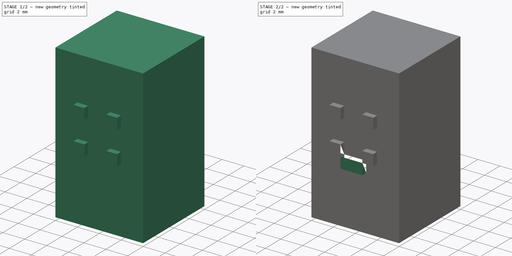
[diagram: build sequence overview — one tinted view per stage of 2, left to right]
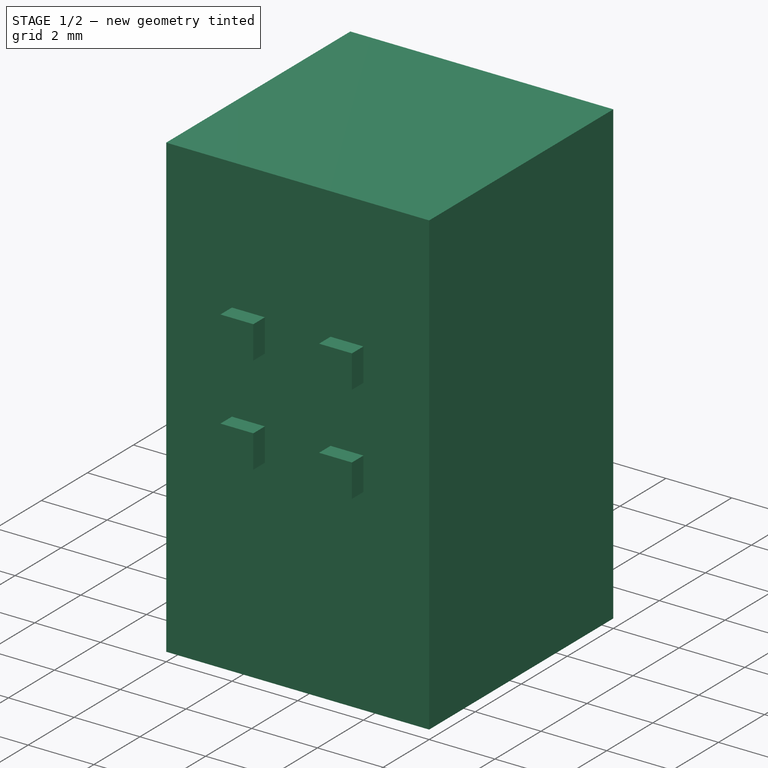
[diagram: stage 1 of 2 — iso view after this stage's code; geometry added in this stage tinted green]
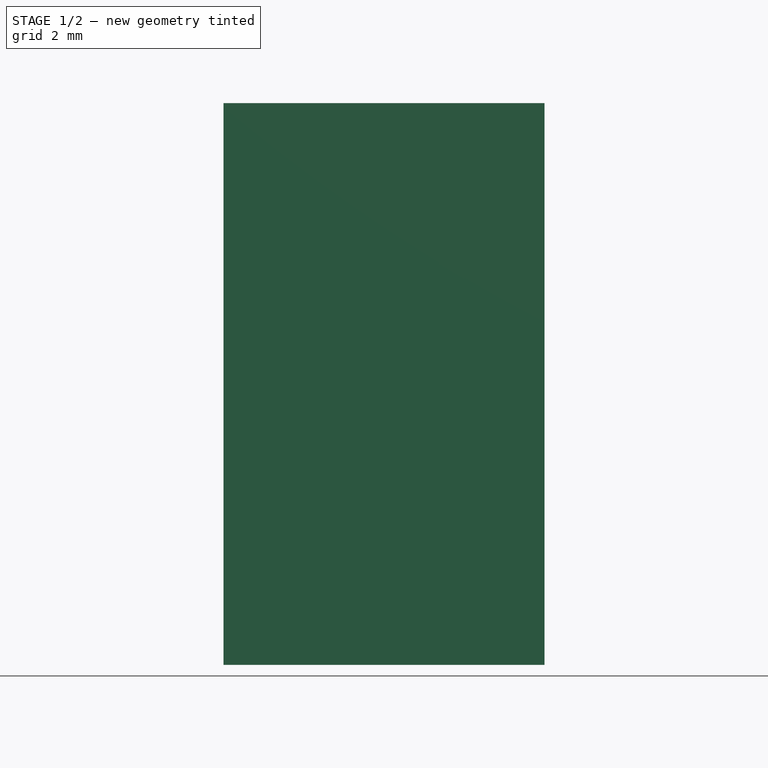
[diagram: stage 1 of 2 — front view after this stage's code; geometry added in this stage tinted green]
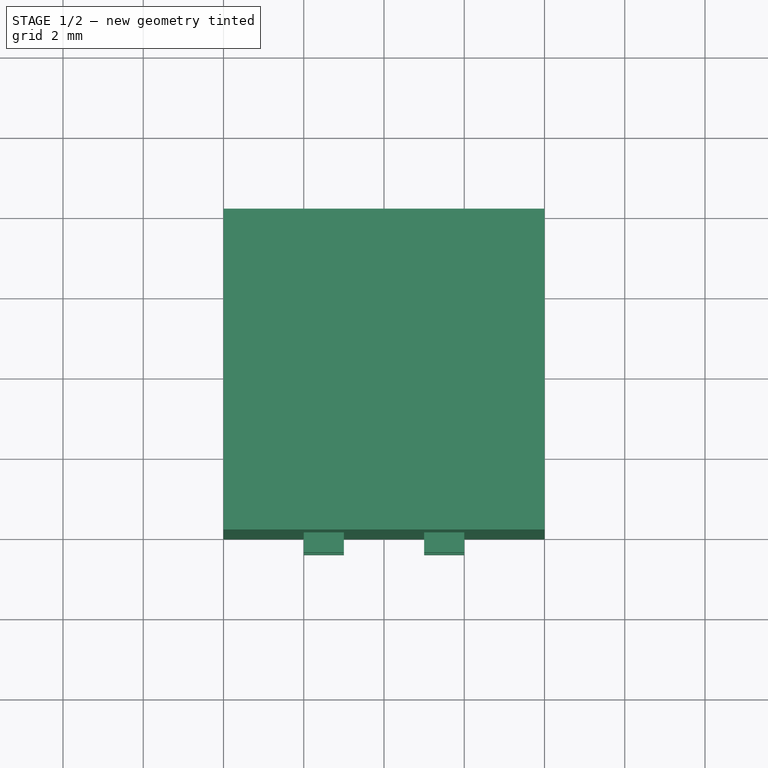
[diagram: stage 1 of 2 — top view after this stage's code; geometry added in this stage tinted green]
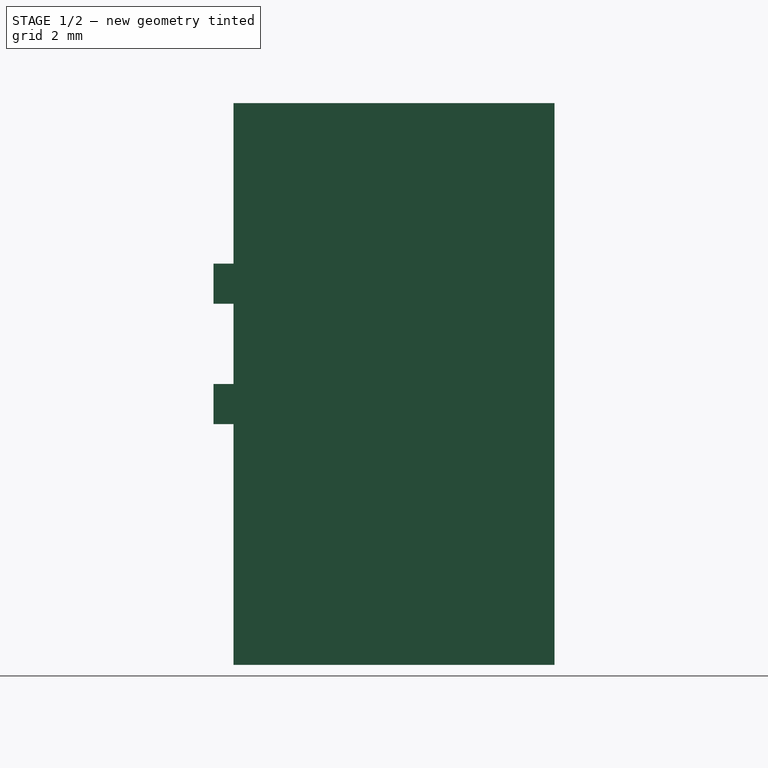
[diagram: stage 1 of 2 — right view after this stage's code; geometry added in this stage tinted green]
FCSTD DOCUMENT  (FreeCAD 0.18R16155 (Git))
Label: liltater
License: All rights reserved
LicenseURL: http://en.wikipedia.org/wiki/All_rights_reserved
objects: Sketcher::SketchObject×3, PartDesign::Pad×3, PartDesign::Body×1, App::Part×1
note: 10 computed .brp shape members not serialized (recipe doc carries the construction recipe); baked Part::Feature solids carry a one-line shape summary decoded from their .brp

FEATURE [Sketcher::SketchObject] Sketch
  MapMode = 5
  Support = -> [XY_Plane001]
  sketch-geometry (4):
    g0: LineSegment StartX=0 StartY=0 StartZ=0 EndX=8 EndY=0 EndZ=0
    g1: LineSegment StartX=8 StartY=0 StartZ=0 EndX=8 EndY=8 EndZ=0
    g2: LineSegment StartX=8 StartY=8 StartZ=0 EndX=0 EndY=8 EndZ=0
    g3: LineSegment StartX=0 StartY=8 StartZ=0 EndX=0 EndY=0 EndZ=0
  constraints (11):
    c: Coincident(g0,g1)
    c: Coincident(g1,g2)
    c: Coincident(g2,g3)
    c: Coincident(g3,g0)
    c: Horizontal(g0)
    c: Horizontal(g2)
    c: Vertical(g1)
    c: Vertical(g3)
    c: Equal(g1,g2)
    c: Distance(g2) = 8
    c: Coincident(g0,g-1)
FEATURE [PartDesign::Pad] Pad
  Length = 14
  Length2 = 100
  Profile = -> Sketch
  Type = 0
FEATURE [Sketcher::SketchObject] Sketch001
  ExternalGeometry = -> [Pad]
  MapMode = 5
  Placement = pos=(0,0,0) rot=(1,0,0;1.5708rad)
  Support = -> [Pad]
  sketch-geometry (20):
    g0: LineSegment StartX=2 StartY=10 StartZ=0 EndX=3 EndY=10 EndZ=0
    g1: LineSegment StartX=3 StartY=10 StartZ=0 EndX=3 EndY=9 EndZ=0
    g2: LineSegment StartX=3 StartY=9 StartZ=0 EndX=2 EndY=9 EndZ=0
    g3: LineSegment StartX=2 StartY=9 StartZ=0 EndX=2 EndY=10 EndZ=0
    g4: LineSegment StartX=5 StartY=10 StartZ=0 EndX=6 EndY=10 EndZ=0
    g5: LineSegment StartX=6 StartY=10 StartZ=0 EndX=6 EndY=9 EndZ=0
    g6: LineSegment StartX=6 StartY=9 StartZ=0 EndX=5 EndY=9 EndZ=0
    g7: LineSegment StartX=5 StartY=9 StartZ=0 EndX=5 EndY=10 EndZ=0
    g8: LineSegment [constr] StartX=2 StartY=10 StartZ=0 EndX=2 EndY=14 EndZ=0
    g9: LineSegment [constr] StartX=2 StartY=10 StartZ=0 EndX=0 EndY=10 EndZ=0
    g10: LineSegment [constr] StartX=3 StartY=10 StartZ=0 EndX=5 EndY=10 EndZ=0
    g11: LineSegment StartX=2 StartY=7 StartZ=0 EndX=3 EndY=7 EndZ=0
    g12: LineSegment StartX=3 StartY=7 StartZ=0 EndX=3 EndY=6 EndZ=0
    g13: LineSegment StartX=3 StartY=6 StartZ=0 EndX=2 EndY=6 EndZ=0
    g14: LineSegment StartX=2 StartY=6 StartZ=0 EndX=2 EndY=7 EndZ=0
    g15: LineSegment StartX=5 StartY=7 StartZ=0 EndX=6 EndY=7 EndZ=0
    g16: LineSegment StartX=6 StartY=7 StartZ=0 EndX=6 EndY=6 EndZ=0
    g17: LineSegment StartX=6 StartY=6 StartZ=0 EndX=5 EndY=6 EndZ=0
    g18: LineSegment StartX=5 StartY=6 StartZ=0 EndX=5 EndY=7 EndZ=0
    g19: LineSegment [constr] StartX=5 StartY=9 StartZ=0 EndX=5 EndY=7 EndZ=0
  constraints (54):
    c: Coincident(g0,g1)
    c: Coincident(g1,g2)
    c: Coincident(g2,g3)
    c: Coincident(g3,g0)
    c: Horizontal(g0)
    c: Horizontal(g2)
    c: Vertical(g1)
    c: Vertical(g3)
    c: Coincident(g4,g5)
    c: Coincident(g5,g6)
    c: Coincident(g6,g7)
    c: Coincident(g7,g4)
    c: Horizontal(g4)
    c: Vertical(g5)
    c: Vertical(g7)
    c: Equal(g5,g6)
    c: Equal(g1,g0)
    c: Equal(g7,g1)
    c: Distance(g4) = 1
    c: Coincident(g9,g0)
    c: Coincident(g8,g0)
    c: Tangent(g6,g2)
    c: Distance(g9) = 2
    c: Distance(g8) = 4
    c: PointOnObject(g8,g-4)
    c: PointOnObject(g9,g-3)
    c: Vertical(g8)
    c: Horizontal(g9)
    c: Coincident(g10,g0)
    c: Coincident(g10,g4)
    c: Distance(g10) = 2
    c: Coincident(g11,g12)
    c: Coincident(g12,g13)
    c: Coincident(g13,g14)
    c: Coincident(g14,g11)
    c: Horizontal(g11)
    c: Horizontal(g13)
    c: Vertical(g14)
    c: Coincident(g15,g16)
    c: Coincident(g16,g17)
    c: Coincident(g17,g18)
    c: Coincident(g18,g15)
    c: Horizontal(g17)
    c: Vertical(g16)
    c: Equal(g15,g6)
    c: Equal(g15,g18)
    c: Equal(g2,g11)
    c: Equal(g11,g12)
    c: Tangent(g12,g1)
    c: Tangent(g18,g7)
    c: Tangent(g15,g11)
    c: Coincident(g19,g6)
    c: Coincident(g19,g15)
    c: Distance(g19) = 2
FEATURE [PartDesign::Pad] Pad001
  BaseFeature = -> Pad
  Length = 0.5
  Length2 = 100
  Profile = -> Sketch001
  Type = 0
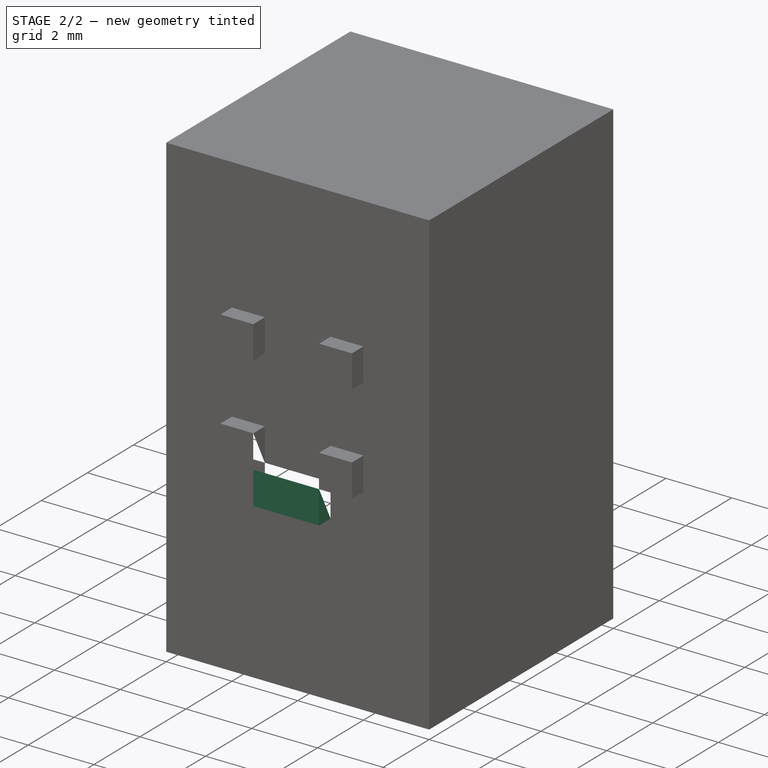
[diagram: stage 2 of 2 — iso view after this stage's code; geometry added in this stage tinted green]
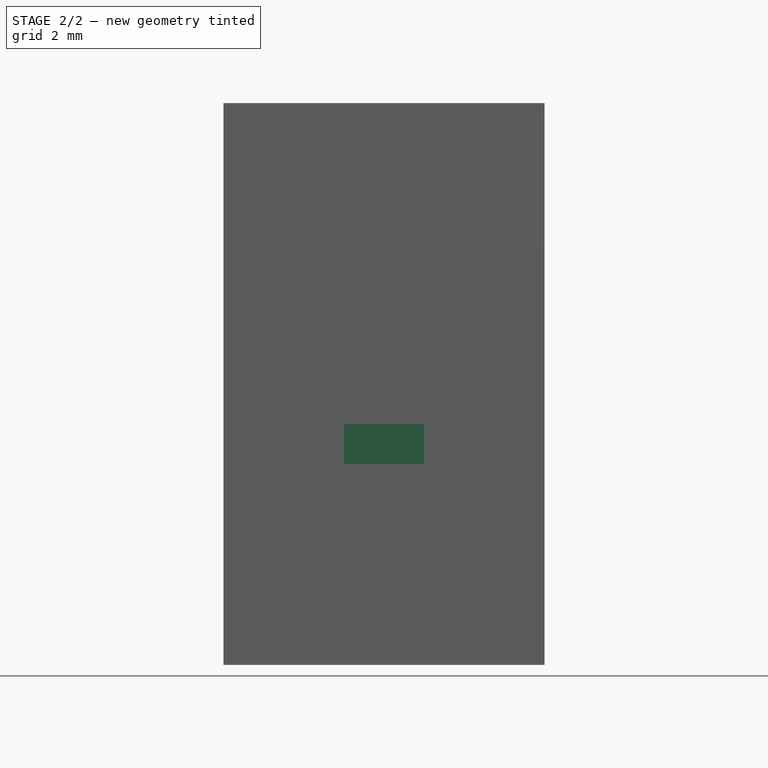
[diagram: stage 2 of 2 — front view after this stage's code; geometry added in this stage tinted green]
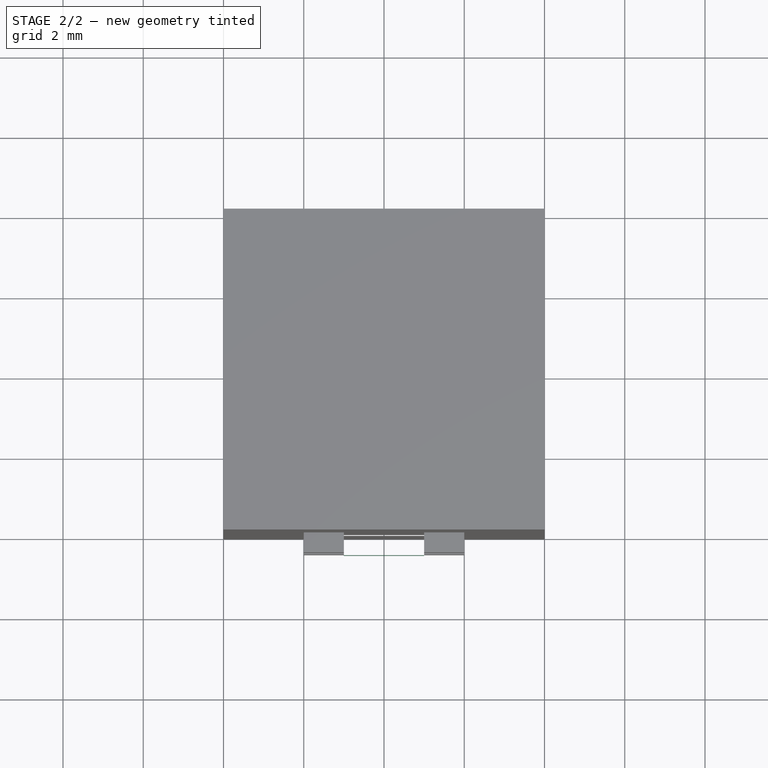
[diagram: stage 2 of 2 — top view after this stage's code; geometry added in this stage tinted green]
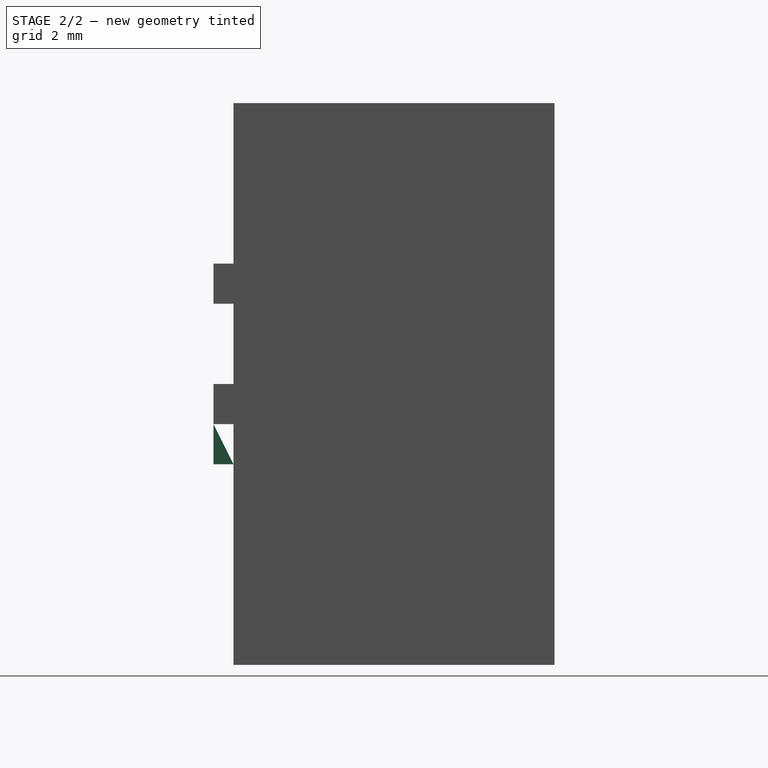
[diagram: stage 2 of 2 — right view after this stage's code; geometry added in this stage tinted green]
FEATURE [Sketcher::SketchObject] Sketch002
  ExternalGeometry = -> [Pad001]
  MapMode = 5
  Placement = pos=(0,0,0) rot=(1,0,0;1.5708rad)
  Support = -> [Pad001]
  sketch-geometry (4):
    g0: LineSegment StartX=3 StartY=6 StartZ=0 EndX=5 EndY=6 EndZ=0
    g1: LineSegment StartX=5 StartY=6 StartZ=0 EndX=5 EndY=5 EndZ=0
    g2: LineSegment StartX=5 StartY=5 StartZ=0 EndX=3 EndY=5 EndZ=0
    g3: LineSegment StartX=3 StartY=5 StartZ=0 EndX=3 EndY=6 EndZ=0
  constraints (11):
    c: Coincident(g0,g1)
    c: Coincident(g1,g2)
    c: Coincident(g2,g3)
    c: Coincident(g3,g0)
    c: Horizontal(g0)
    c: Horizontal(g2)
    c: Vertical(g1)
    c: Vertical(g3)
    c: Coincident(g-3,g0)
    c: Equal(g-3,g1)
    c: Distance(g0) = 2
FEATURE [PartDesign::Pad] Pad002
  BaseFeature = -> Pad001
  Length = 0.5
  Length2 = 100
  Profile = -> Sketch002
  Type = 0
FEATURE [PartDesign::Body] Body
  Group = -> [Sketch,Pad,Sketch001,Pad001,Sketch002,Pad002]
  Origin = -> Origin001
  Tip = -> Pad002
FEATURE [App::Part] Part
  Group = -> [Body]
  Origin = -> Origin
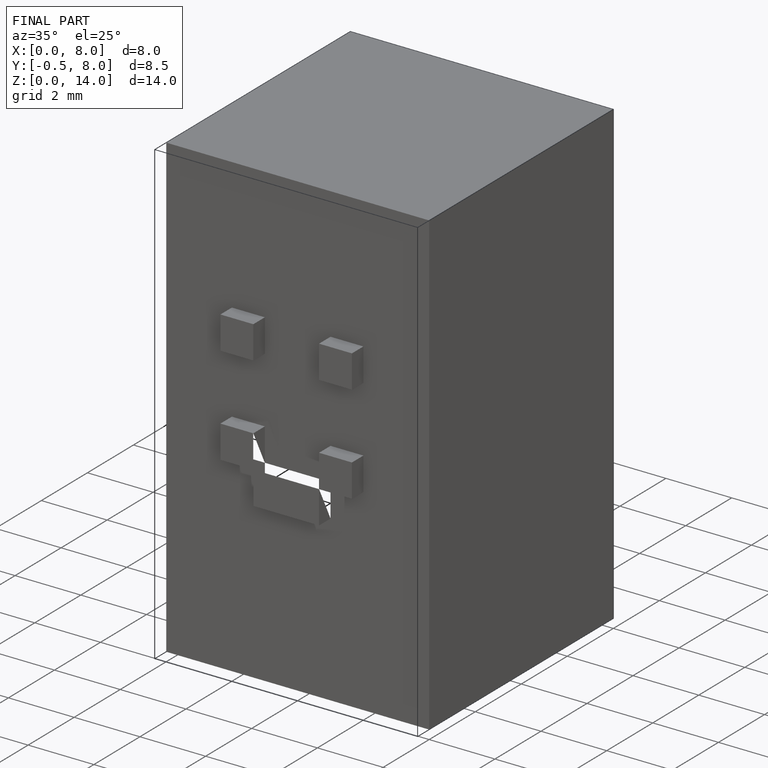
[diagram: finished part — iso view with bounding-box wireframe]
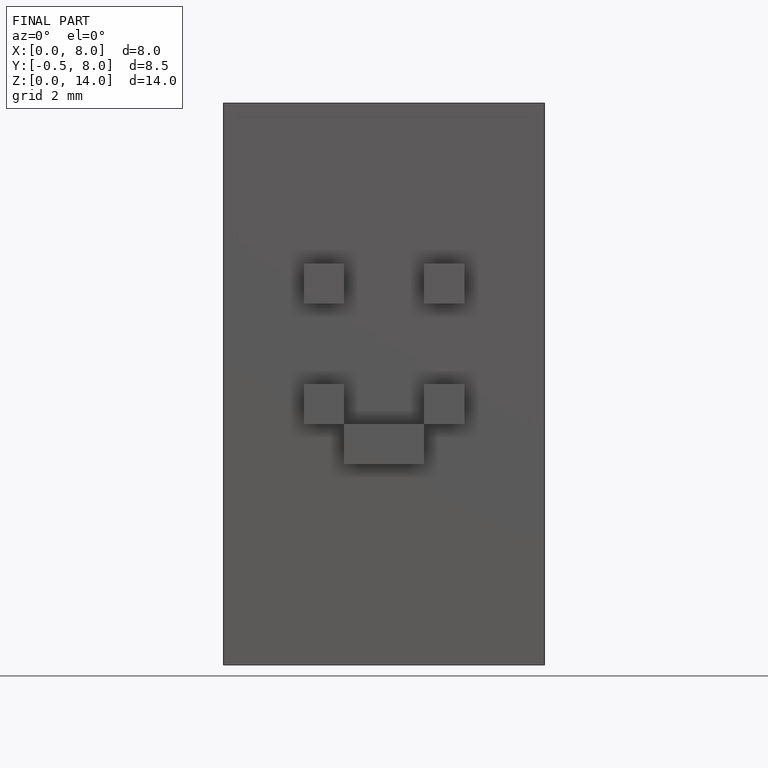
[diagram: finished part — front view with bounding-box wireframe]
